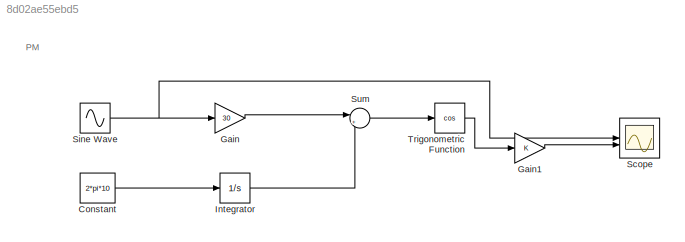
MODEL slx_8d02ae55ebd5
KIND model
CONFIG AbsTol = auto
CONFIG EnableMultiTasking = off
CONFIG FixedStep = auto
CONFIG MaxStep = 0.001
CONFIG MinStep = auto
CONFIG RelTol = 1e-3
CONFIG SampleTimeConstraint = Unconstrained
CONFIG SolverName = VariableStepAuto
CONFIG StartTime = 0.0
CONFIG StopTime = 10.0
BLOCK [Constant] Constant
  Value = 2*pi*10
BLOCK [Gain] Gain
  Gain = 30
BLOCK [Gain] Gain1
BLOCK [Integrator] Integrator
BLOCK [Scope] Scope
  Floating = off
  NumInputPorts = 2
  ScopeSpecificationString = Simulink.scopes.TimeScopeBlockCfg('CurrentConfiguration', extmgr.ConfigurationSet(extmgr.Configuration('Core','General UI',true),extmgr.Configuration('Core','Source UI',true),extmgr.Configuration('Sources','WiredSimulink',true,'SampleTime','0'),extmgr.Configuration('Visuals','Time Domain',true,'SerializedDisplays',{struct('MinYLimReal','-6.24997','MaxYLimReal','6.24997','YLabelReal','','MinYLimMag...<+1945ch>
BLOCK [Sin] Sine Wave
  Frequency = 1*2*pi
  SampleTime = 0
BLOCK [Sum] Sum
  Inputs = |++
BLOCK [Trigonometry] Trigonometric Function
  Operator = cos
ANNOTATION (root): PM
LINE Constant:1 -> Integrator:1
LINE Gain1:1 -> Scope:2
LINE Gain:1 -> Sum:1
LINE Integrator:1 -> Sum:2
NET Sine Wave:1 -> Gain:1, Scope:1
LINE Sum:1 -> Trigonometric Function:1
LINE Trigonometric Function:1 -> Gain1:1
note: NET lines group one-source signal fan-out (src -> all destinations, sorted); 1:1 wires keep LINE
